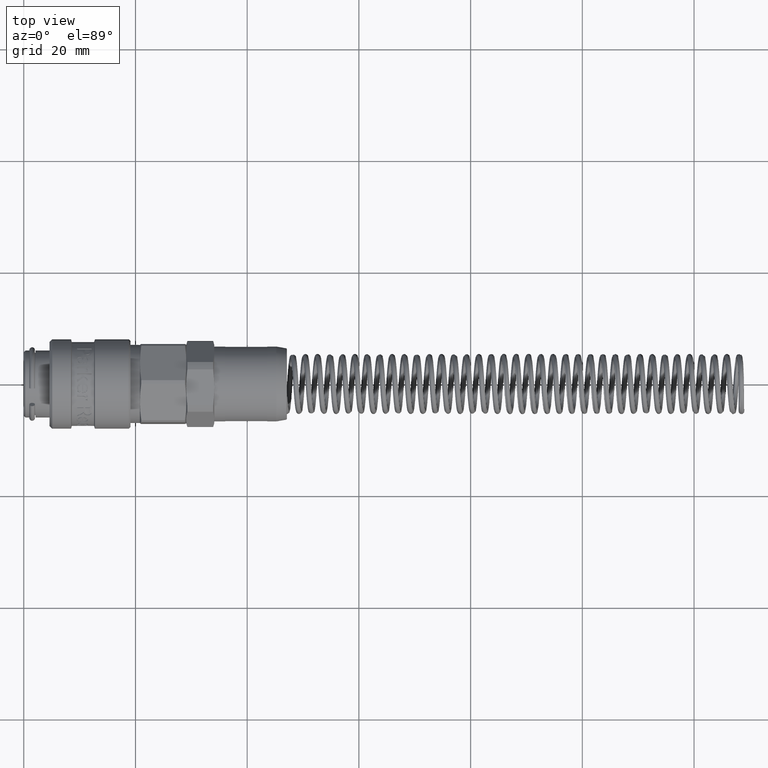
[diagram: clean part render]
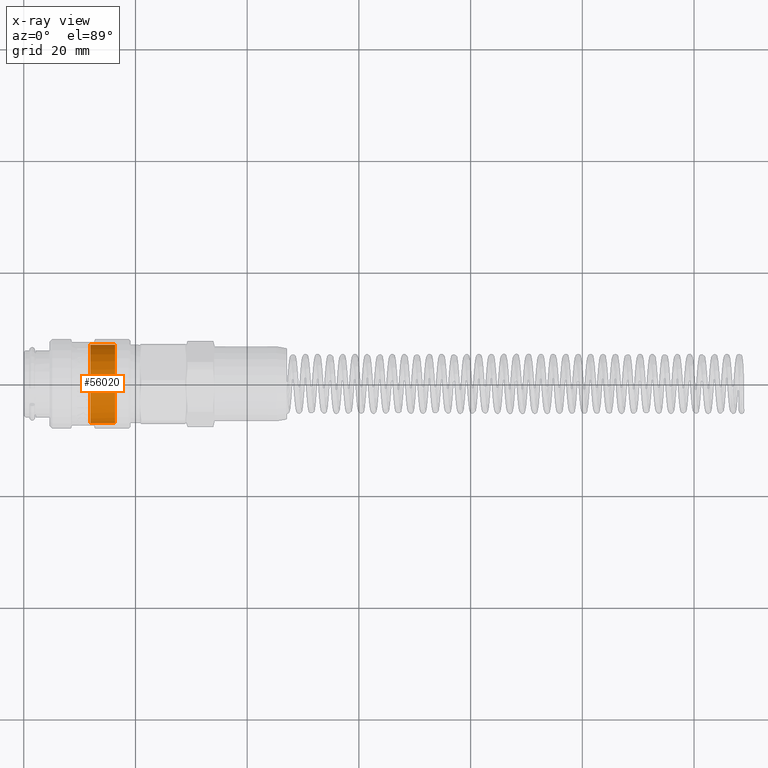
[diagram: x-ray — body ghosted, one internal face saturated and labeled with its STEP entity id]
A machine part, top view, then the same camera in x-ray: the body is ghosted and one INTERNAL B-rep face — a face not visible from any outside direction — is saturated and labeled: STEP entity #56020.
In plain terms, the highlighted cylindrical surface (bore or boss wall) has radius 7 mm, axis along (1, 0, 0).
Its self-contained STEP definition (entity closure, byte-faithful):
#13732=CARTESIAN_POINT('',(16.350000000000019,-6.996848899799818,0.21001303142937));
#13733=VERTEX_POINT('',#13732);
#13734=CARTESIAN_POINT('',(16.350000000000019,0.0,0.0));
#13735=DIRECTION('',(1.0,0.0,0.0));
#13736=DIRECTION('',(0.0,0.969460981439545,0.245245602338295));
#13737=AXIS2_PLACEMENT_3D('',#13734,#13735,#13736);
#13738=CIRCLE('',#13737,7.0);
#13739=EDGE_CURVE('',#13733,#13733,#13738,.T.);
#56001=CARTESIAN_POINT('',(15.499999999999998,0.0,0.0));
#56002=DIRECTION('',(1.0,0.0,0.0));
#56003=DIRECTION('',(0.0,0.969460981439545,0.245245602338295));
#56004=AXIS2_PLACEMENT_3D('',#56001,#56002,#56003);
#56005=CYLINDRICAL_SURFACE('',#56004,7.000000000000001);
#56006=ORIENTED_EDGE('',*,*,#13739,.T.);
#56007=EDGE_LOOP('',(#56006));
#56008=FACE_OUTER_BOUND('',#56007,.T.);
#56009=CARTESIAN_POINT('',(11.899999999999999,6.786226870076819,1.716719216368068));
#56010=VERTEX_POINT('',#56009);
#56011=CARTESIAN_POINT('',(11.899999999999999,0.0,0.0));
#56012=DIRECTION('',(1.0,0.0,0.0));
#56013=DIRECTION('',(0.0,0.969460981439545,0.245245602338295));
#56014=AXIS2_PLACEMENT_3D('',#56011,#56012,#56013);
#56015=CIRCLE('',#56014,7.0);
#56016=EDGE_CURVE('',#56010,#56010,#56015,.T.);
#56017=ORIENTED_EDGE('',*,*,#56016,.F.);
#56018=EDGE_LOOP('',(#56017));
#56019=FACE_BOUND('',#56018,.T.);
#56020=ADVANCED_FACE('',(#56008,#56019),#56005,.F.);